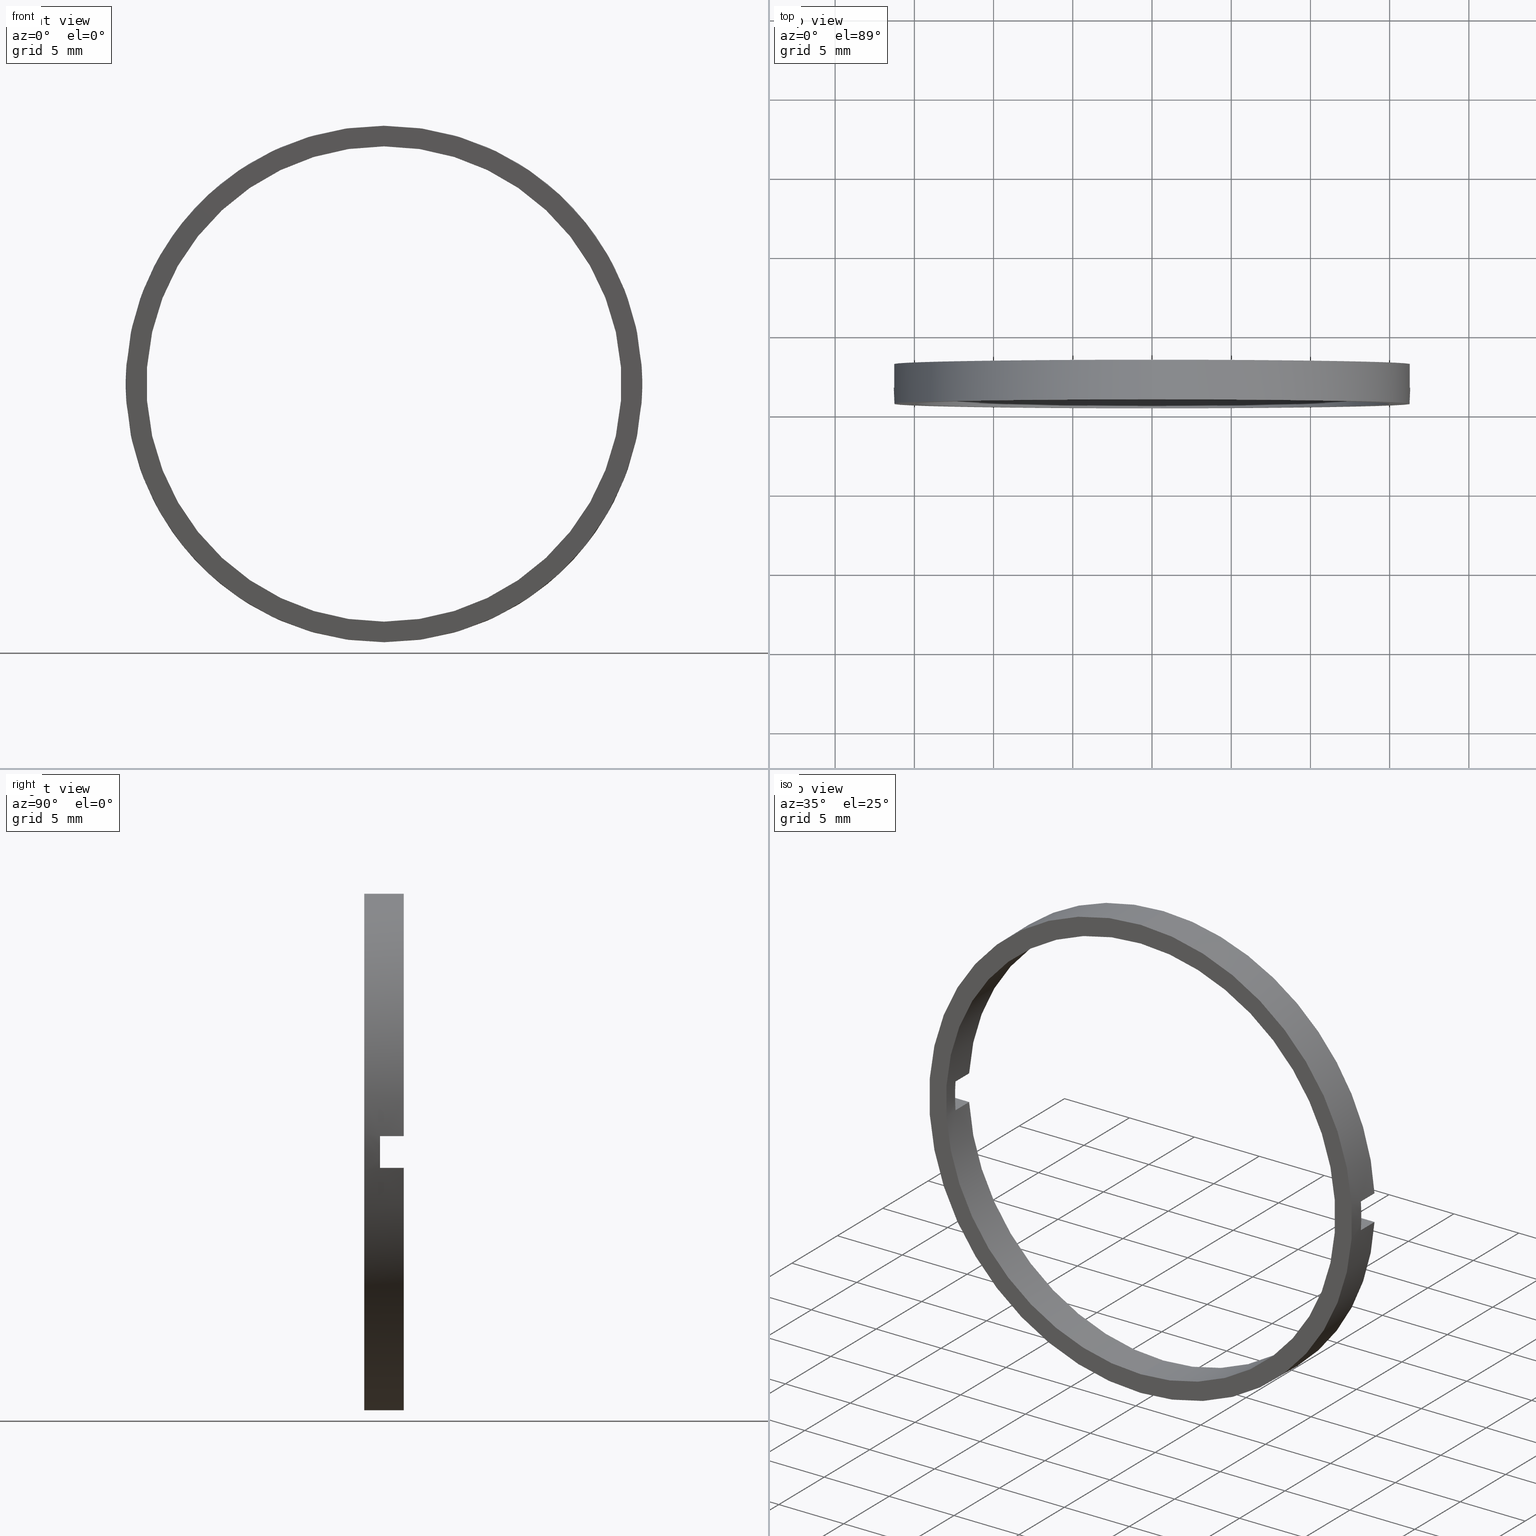
[diagram: canonical four-view strip — front | top / right | iso, engineering-drawing reading convention]
A machine part, canonical four-view strip (front | top / right | iso — engineering-drawing reading convention). The complete STEP part file that produces these views, byte-faithful:
ISO-10303-21;
HEADER;
FILE_DESCRIPTION (( 'STEP AP214' ),
    '1' );
FILE_NAME ('514004.STEP',
    '2019-09-18T02:56:30',
    ( '' ),
    ( '' ),
    'SwSTEP 2.0',
    'SolidWorks 2016',
    '' );
FILE_SCHEMA (( 'AUTOMOTIVE_DESIGN' ));
ENDSEC;

DATA;
#1 = ORIENTED_EDGE ( 'NONE', *, *, #499, .F. ) ;
#2 = AXIS2_PLACEMENT_3D ( 'NONE', #435, #490, #372 ) ;
#3 = CIRCLE ( 'NONE', #36, 15.00000000000000700 ) ;
#4 = ORIENTED_EDGE ( 'NONE', *, *, #80, .T. ) ;
#5 = DIRECTION ( 'NONE',  ( -0.0000000000000000000, 1.000000000000000000, -0.0000000000000000000 ) ) ;
#6 = ADVANCED_FACE ( 'NONE', ( #162 ), #278, .F. ) ;
#7 =( GEOMETRIC_REPRESENTATION_CONTEXT ( 3 ) GLOBAL_UNCERTAINTY_ASSIGNED_CONTEXT ( ( #32 ) ) GLOBAL_UNIT_ASSIGNED_CONTEXT ( ( #259, #108, #145 ) ) REPRESENTATION_CONTEXT ( 'NONE', 'WORKASPACE' ) );
#8 = ADVANCED_FACE ( 'NONE', ( #312 ), #350, .T. ) ;
#9 = DIRECTION ( 'NONE',  ( -1.000000000000000000, -0.0000000000000000000, -0.0000000000000000000 ) ) ;
#10 = CIRCLE ( 'NONE', #217, 15.00000000000000700 ) ;
#11 = ORIENTED_EDGE ( 'NONE', *, *, #231, .F. ) ;
#12 = CARTESIAN_POINT ( 'NONE',  ( 0.0000000000000000000, -1.964249787179434000, 0.0000000000000000000 ) ) ;
#13 = ADVANCED_FACE ( 'NONE', ( #487 ), #216, .F. ) ;
#14 = CIRCLE ( 'NONE', #246, 16.30000000000000800 ) ;
#15 = DIRECTION ( 'NONE',  ( 0.0000000000000000000, -1.000000000000000000, 0.0000000000000000000 ) ) ;
#16 = ORIENTED_EDGE ( 'NONE', *, *, #77, .T. ) ;
#17 = DIRECTION ( 'NONE',  ( -1.000000000000000000, -0.0000000000000000000, -0.0000000000000000000 ) ) ;
#18 = EDGE_CURVE ( 'NONE', #285, #327, #391, .T. ) ;
#19 = EDGE_CURVE ( 'NONE', #285, #100, #385, .T. ) ;
#20 = DIRECTION ( 'NONE',  ( 1.000000000000000000, 0.0000000000000000000, 0.0000000000000000000 ) ) ;
#21 = CARTESIAN_POINT ( 'NONE',  ( 15.00000000000000700, -4.464249787179429800, 0.0000000000000000000 ) ) ;
#22 = DIRECTION ( 'NONE',  ( -0.0000000000000000000, 1.000000000000000000, -0.0000000000000000000 ) ) ;
#23 = LINE ( 'NONE', #123, #301 ) ;
#24 = AXIS2_PLACEMENT_3D ( 'NONE', #21, #437, #253 ) ;
#25 = FACE_OUTER_BOUND ( 'NONE', #274, .T. ) ;
#26 = VERTEX_POINT ( 'NONE', #158 ) ;
#27 = ORIENTED_EDGE ( 'NONE', *, *, #313, .F. ) ;
#28 = ORIENTED_EDGE ( 'NONE', *, *, #399, .T. ) ;
#29 = DIRECTION ( 'NONE',  ( -1.000000000000000000, -0.0000000000000000000, -0.0000000000000000000 ) ) ;
#30 = PRESENTATION_LAYER_ASSIGNMENT (  '', '', ( #402 ) ) ;
#31 = CARTESIAN_POINT ( 'NONE',  ( -16.26929623554750400, -3.464249787179428400, 0.9999999999999995600 ) ) ;
#32 = UNCERTAINTY_MEASURE_WITH_UNIT (LENGTH_MEASURE( 1.000000000000000100E-005 ), #259, 'distance_accuracy_value', 'NONE');
#33 = CIRCLE ( 'NONE', #304, 15.00000000000000700 ) ;
#34 = EDGE_LOOP ( 'NONE', ( #328, #186 ) ) ;
#35 = FACE_OUTER_BOUND ( 'NONE', #49, .T. ) ;
#36 = AXIS2_PLACEMENT_3D ( 'NONE', #264, #449, #64 ) ;
#37 = CARTESIAN_POINT ( 'NONE',  ( -26.85254027261461800, -3.464249787179431100, 1.000000000000000000 ) ) ;
#38 = CARTESIAN_POINT ( 'NONE',  ( -26.85254027261461800, -3.464249787179431100, 1.000000000000000000 ) ) ;
#39 = VERTEX_POINT ( 'NONE', #352 ) ;
#40 = ORIENTED_EDGE ( 'NONE', *, *, #342, .T. ) ;
#41 = CARTESIAN_POINT ( 'NONE',  ( 0.0000000000000000000, -3.464249787179431100, 0.0000000000000000000 ) ) ;
#42 = EDGE_CURVE ( 'NONE', #59, #265, #370, .T. ) ;
#43 = EDGE_CURVE ( 'NONE', #451, #327, #82, .T. ) ;
#44 = LINE ( 'NONE', #58, #283 ) ;
#45 = CARTESIAN_POINT ( 'NONE',  ( 0.0000000000000000000, -3.464249787179431100, 0.0000000000000000000 ) ) ;
#46 = ORIENTED_EDGE ( 'NONE', *, *, #191, .F. ) ;
#47 = DIRECTION ( 'NONE',  ( 1.000000000000000000, 0.0000000000000000000, 0.0000000000000000000 ) ) ;
#48 = ADVANCED_FACE ( 'NONE', ( #341 ), #257, .T. ) ;
#49 = EDGE_LOOP ( 'NONE', ( #495, #339, #501, #382 ) ) ;
#50 = ORIENTED_EDGE ( 'NONE', *, *, #231, .T. ) ;
#51 = AXIS2_PLACEMENT_3D ( 'NONE', #69, #62, #457 ) ;
#52 = CARTESIAN_POINT ( 'NONE',  ( 14.96662954709577100, -3.464249787179428400, 0.9999999999999995600 ) ) ;
#53 = EDGE_CURVE ( 'NONE', #65, #143, #23, .T. ) ;
#54 = AXIS2_PLACEMENT_3D ( 'NONE', #389, #276, #348 ) ;
#55 =( GEOMETRIC_REPRESENTATION_CONTEXT ( 3 ) GLOBAL_UNCERTAINTY_ASSIGNED_CONTEXT ( ( #161 ) ) GLOBAL_UNIT_ASSIGNED_CONTEXT ( ( #244, #360, #404 ) ) REPRESENTATION_CONTEXT ( 'NONE', 'WORKASPACE' ) );
#56 = CIRCLE ( 'NONE', #420, 15.00000000000000700 ) ;
#57 = DIRECTION ( 'NONE',  ( 0.0000000000000000000, -1.000000000000000000, 0.0000000000000000000 ) ) ;
#58 = CARTESIAN_POINT ( 'NONE',  ( -26.85254027261461800, -3.464249787179431100, -1.000000000000000000 ) ) ;
#59 = VERTEX_POINT ( 'NONE', #52 ) ;
#60 = AXIS2_PLACEMENT_3D ( 'NONE', #343, #107, #416 ) ;
#61 = DIRECTION ( 'NONE',  ( 0.0000000000000000000, -0.0000000000000000000, -1.000000000000000000 ) ) ;
#62 = DIRECTION ( 'NONE',  ( -0.0000000000000000000, 1.000000000000000000, -0.0000000000000000000 ) ) ;
#63 = EDGE_LOOP ( 'NONE', ( #434, #74, #466, #472, #16, #445, #237, #452 ) ) ;
#64 = DIRECTION ( 'NONE',  ( 0.0000000000000000000, 0.0000000000000000000, 1.000000000000000000 ) ) ;
#65 = VERTEX_POINT ( 'NONE', #210 ) ;
#66 = SURFACE_STYLE_FILL_AREA ( #185 ) ;
#67 = DIRECTION ( 'NONE',  ( 0.0000000000000000000, 0.0000000000000000000, 1.000000000000000000 ) ) ;
#68 = UNCERTAINTY_MEASURE_WITH_UNIT (LENGTH_MEASURE( 1.000000000000000100E-005 ), #454, 'distance_accuracy_value', 'NONE');
#69 = CARTESIAN_POINT ( 'NONE',  ( 0.0000000000000000000, 56.26084262701361600, 0.0000000000000000000 ) ) ;
#70 =( NAMED_UNIT ( * ) SI_UNIT ( $, .STERADIAN. ) SOLID_ANGLE_UNIT ( ) );
#71 = AXIS2_PLACEMENT_3D ( 'NONE', #78, #154, #284 ) ;
#72 = VECTOR ( 'NONE', #98, 1000.000000000000000 ) ;
#73 = DIRECTION ( 'NONE',  ( 1.000000000000000000, 0.0000000000000000000, 0.0000000000000000000 ) ) ;
#74 = ORIENTED_EDGE ( 'NONE', *, *, #19, .F. ) ;
#75 = ORIENTED_EDGE ( 'NONE', *, *, #286, .T. ) ;
#76 = AXIS2_PLACEMENT_3D ( 'NONE', #336, #102, #141 ) ;
#77 = EDGE_CURVE ( 'NONE', #249, #59, #474, .T. ) ;
#78 = CARTESIAN_POINT ( 'NONE',  ( 0.0000000000000000000, 56.26084262701361600, 0.0000000000000000000 ) ) ;
#79 = LINE ( 'NONE', #225, #387 ) ;
#80 = EDGE_CURVE ( 'NONE', #279, #143, #460, .T. ) ;
#81 = ORIENTED_EDGE ( 'NONE', *, *, #286, .F. ) ;
#82 = CIRCLE ( 'NONE', #239, 15.00000000000000700 ) ;
#83 = UNCERTAINTY_MEASURE_WITH_UNIT (LENGTH_MEASURE( 1.000000000000000100E-005 ), #197, 'distance_accuracy_value', 'NONE');
#84 = ADVANCED_FACE ( 'NONE', ( #137 ), #294, .F. ) ;
#85 = CARTESIAN_POINT ( 'NONE',  ( -26.85254027261461800, -1.964249787179430900, -1.000000000000000000 ) ) ;
#86 = PRESENTATION_LAYER_ASSIGNMENT (  '', '', ( #138 ) ) ;
#87 = PLANE ( 'NONE',  #346 ) ;
#88 = ORIENTED_EDGE ( 'NONE', *, *, #415, .F. ) ;
#89 = FILL_AREA_STYLE ('',( #481 ) ) ;
#90 = ORIENTED_EDGE ( 'NONE', *, *, #439, .T. ) ;
#91 = EDGE_LOOP ( 'NONE', ( #479, #464, #465, #81 ) ) ;
#92 = DIRECTION ( 'NONE',  ( -0.0000000000000000000, 1.000000000000000000, -0.0000000000000000000 ) ) ;
#93 = DIRECTION ( 'NONE',  ( 0.0000000000000000000, 0.0000000000000000000, 1.000000000000000000 ) ) ;
#94 = CARTESIAN_POINT ( 'NONE',  ( -26.85254027261461800, -3.464249787179431100, -1.000000000000000000 ) ) ;
#95 = ORIENTED_EDGE ( 'NONE', *, *, #254, .F. ) ;
#96 = SURFACE_STYLE_FILL_AREA ( #273 ) ;
#97 = CARTESIAN_POINT ( 'NONE',  ( 16.26929623554750400, -3.464249787179428400, -0.9999999999999995600 ) ) ;
#98 = DIRECTION ( 'NONE',  ( 0.0000000000000000000, -1.000000000000000000, 0.0000000000000000000 ) ) ;
#99 = CARTESIAN_POINT ( 'NONE',  ( 0.0000000000000000000, -1.964249787179434000, 0.0000000000000000000 ) ) ;
#100 = VERTEX_POINT ( 'NONE', #430 ) ;
#101 = FILL_AREA_STYLE_COLOUR ( '', #485 ) ;
#102 = DIRECTION ( 'NONE',  ( -0.0000000000000000000, 1.000000000000000000, -0.0000000000000000000 ) ) ;
#103 = VECTOR ( 'NONE', #330, 1000.000000000000000 ) ;
#104 = EDGE_CURVE ( 'NONE', #327, #249, #10, .T. ) ;
#105 = CARTESIAN_POINT ( 'NONE',  ( 0.0000000000000000000, -3.464249787179428400, 0.0000000000000000000 ) ) ;
#106 = PRODUCT_RELATED_PRODUCT_CATEGORY ( 'part', '', ( #315 ) ) ;
#107 = DIRECTION ( 'NONE',  ( 0.0000000000000000000, -1.000000000000000000, 0.0000000000000000000 ) ) ;
#108 =( NAMED_UNIT ( * ) PLANE_ANGLE_UNIT ( ) SI_UNIT ( $, .RADIAN. ) );
#109 = EDGE_LOOP ( 'NONE', ( #199, #203, #436, #117, #351, #482 ) ) ;
#110 = CARTESIAN_POINT ( 'NONE',  ( -26.85254027261461800, -3.464249787179431100, 1.000000000000000000 ) ) ;
#111 = CARTESIAN_POINT ( 'NONE',  ( 0.0000000000000000000, 56.26084262701361600, 16.30000000000000800 ) ) ;
#112 = FACE_OUTER_BOUND ( 'NONE', #413, .T. ) ;
#113 = AXIS2_PLACEMENT_3D ( 'NONE', #309, #493, #61 ) ;
#114 = DIRECTION ( 'NONE',  ( 0.0000000000000000000, 1.000000000000000000, 0.0000000000000000000 ) ) ;
#115 = COLOUR_RGB ( '',1.000000000000000000, 1.000000000000000000, 1.000000000000000000 ) ;
#116 = DIRECTION ( 'NONE',  ( 0.0000000000000000000, 0.0000000000000000000, 1.000000000000000000 ) ) ;
#117 = ORIENTED_EDGE ( 'NONE', *, *, #104, .F. ) ;
#118 = CARTESIAN_POINT ( 'NONE',  ( 0.0000000000000000000, -1.964249787179434000, 0.0000000000000000000 ) ) ;
#119 = ADVANCED_FACE ( 'NONE', ( #35 ), #164, .T. ) ;
#120 = CARTESIAN_POINT ( 'NONE',  ( -26.85254027261461800, -3.464249787179431100, -1.000000000000000000 ) ) ;
#121 = FACE_OUTER_BOUND ( 'NONE', #156, .T. ) ;
#122 = ADVANCED_FACE ( 'NONE', ( #121 ), #166, .F. ) ;
#123 = CARTESIAN_POINT ( 'NONE',  ( -16.26929623554750700, 56.26084262701361600, -1.000000000000000000 ) ) ;
#124 = MECHANICAL_DESIGN_GEOMETRIC_PRESENTATION_REPRESENTATION (  '', ( #138 ), #323 ) ;
#125 = ORIENTED_EDGE ( 'NONE', *, *, #313, .T. ) ;
#126 = ORIENTED_EDGE ( 'NONE', *, *, #442, .T. ) ;
#127 = EDGE_CURVE ( 'NONE', #39, #395, #179, .T. ) ;
#128 = ORIENTED_EDGE ( 'NONE', *, *, #470, .F. ) ;
#129 = CARTESIAN_POINT ( 'NONE',  ( 14.96662954709577100, -1.964249787179434000, 0.9999999999999995600 ) ) ;
#130 = AXIS2_PLACEMENT_3D ( 'NONE', #41, #114, #396 ) ;
#131 = PRODUCT_DEFINITION_CONTEXT ( 'detailed design', #502, 'design' ) ;
#132 = AXIS2_PLACEMENT_3D ( 'NONE', #242, #367, #325 ) ;
#133 = DIRECTION ( 'NONE',  ( -0.0000000000000000000, 1.000000000000000000, -0.0000000000000000000 ) ) ;
#134 = CYLINDRICAL_SURFACE ( 'NONE', #2, 15.00000000000000700 ) ;
#135 = CARTESIAN_POINT ( 'NONE',  ( 0.0000000000000000000, -1.964249787179434000, 0.0000000000000000000 ) ) ;
#136 = EDGE_LOOP ( 'NONE', ( #171, #50, #160, #326, #1, #75, #173, #128 ) ) ;
#137 = FACE_OUTER_BOUND ( 'NONE', #268, .T. ) ;
#138 = STYLED_ITEM ( 'NONE', ( #455 ), #401 ) ;
#139 = CARTESIAN_POINT ( 'NONE',  ( 14.96662954709577100, -1.964249787179434000, -0.9999999999999995600 ) ) ;
#140 = FACE_OUTER_BOUND ( 'NONE', #136, .T. ) ;
#141 = DIRECTION ( 'NONE',  ( 0.0000000000000000000, 0.0000000000000000000, 1.000000000000000000 ) ) ;
#142 = ORIENTED_EDGE ( 'NONE', *, *, #319, .F. ) ;
#143 = VERTEX_POINT ( 'NONE', #324 ) ;
#144 = CARTESIAN_POINT ( 'NONE',  ( -14.96662954709577100, -3.464249787179428400, 0.9999999999999995600 ) ) ;
#145 =( NAMED_UNIT ( * ) SI_UNIT ( $, .STERADIAN. ) SOLID_ANGLE_UNIT ( ) );
#146 = FACE_BOUND ( 'NONE', #34, .T. ) ;
#147 =( NAMED_UNIT ( * ) PLANE_ANGLE_UNIT ( ) SI_UNIT ( $, .RADIAN. ) );
#148 = CARTESIAN_POINT ( 'NONE',  ( -26.85254027261461800, -1.964249787179430900, 1.000000000000000000 ) ) ;
#149 = EDGE_CURVE ( 'NONE', #506, #395, #358, .T. ) ;
#150 = EDGE_LOOP ( 'NONE', ( #397, #424, #364, #468, #250, #256, #172, #155 ) ) ;
#151 = AXIS2_PLACEMENT_3D ( 'NONE', #207, #475, #476 ) ;
#152 =( NAMED_UNIT ( * ) SI_UNIT ( $, .STERADIAN. ) SOLID_ANGLE_UNIT ( ) );
#153 = CIRCLE ( 'NONE', #480, 16.30000000000000800 ) ;
#154 = DIRECTION ( 'NONE',  ( -0.0000000000000000000, 1.000000000000000000, -0.0000000000000000000 ) ) ;
#155 = ORIENTED_EDGE ( 'NONE', *, *, #18, .F. ) ;
#156 = EDGE_LOOP ( 'NONE', ( #90, #236, #27, #363 ) ) ;
#157 = STYLED_ITEM ( 'NONE', ( #356 ), #425 ) ;
#158 = CARTESIAN_POINT ( 'NONE',  ( -14.96662954709577100, -3.464249787179428400, -0.9999999999999995600 ) ) ;
#159 = EDGE_CURVE ( 'NONE', #177, #39, #275, .T. ) ;
#160 = ORIENTED_EDGE ( 'NONE', *, *, #442, .F. ) ;
#161 = UNCERTAINTY_MEASURE_WITH_UNIT (LENGTH_MEASURE( 1.000000000000000100E-005 ), #244, 'distance_accuracy_value', 'NONE');
#162 = FACE_OUTER_BOUND ( 'NONE', #91, .T. ) ;
#163 = LINE ( 'NONE', #489, #497 ) ;
#164 = PLANE ( 'NONE',  #240 ) ;
#165 = ADVANCED_FACE ( 'NONE', ( #112 ), #87, .F. ) ;
#166 = PLANE ( 'NONE',  #151 ) ;
#167 = PRESENTATION_LAYER_ASSIGNMENT (  '', '', ( #380 ) ) ;
#168 = DIRECTION ( 'NONE',  ( 0.0000000000000000000, 0.0000000000000000000, 1.000000000000000000 ) ) ;
#169 = CIRCLE ( 'NONE', #277, 16.30000000000000800 ) ;
#170 = SURFACE_SIDE_STYLE ('',( #282 ) ) ;
#171 = ORIENTED_EDGE ( 'NONE', *, *, #415, .T. ) ;
#172 = ORIENTED_EDGE ( 'NONE', *, *, #43, .T. ) ;
#173 = ORIENTED_EDGE ( 'NONE', *, *, #176, .F. ) ;
#174 = CIRCLE ( 'NONE', #461, 16.30000000000000800 ) ;
#175 = CARTESIAN_POINT ( 'NONE',  ( 1.996174282610186800E-015, -4.464249787179428900, -16.30000000000000800 ) ) ;
#176 = EDGE_CURVE ( 'NONE', #201, #494, #411, .T. ) ;
#177 = VERTEX_POINT ( 'NONE', #97 ) ;
#178 = DIRECTION ( 'NONE',  ( 0.0000000000000000000, 0.0000000000000000000, 1.000000000000000000 ) ) ;
#179 = LINE ( 'NONE', #291, #223 ) ;
#180 = EDGE_CURVE ( 'NONE', #100, #285, #419, .T. ) ;
#181 = CARTESIAN_POINT ( 'NONE',  ( 1.996174282610186800E-015, -1.964249787179434000, -16.30000000000000800 ) ) ;
#182 = CARTESIAN_POINT ( 'NONE',  ( 16.26929623554749300, -1.964249787179430900, 1.000000000000000000 ) ) ;
#183 = LINE ( 'NONE', #148, #248 ) ;
#184 = DIRECTION ( 'NONE',  ( -0.0000000000000000000, -1.000000000000000000, -0.0000000000000000000 ) ) ;
#185 = FILL_AREA_STYLE ('',( #101 ) ) ;
#186 = ORIENTED_EDGE ( 'NONE', *, *, #180, .T. ) ;
#187 = ORIENTED_EDGE ( 'NONE', *, *, #127, .F. ) ;
#188 = EDGE_CURVE ( 'NONE', #251, #280, #428, .T. ) ;
#189 = LINE ( 'NONE', #226, #202 ) ;
#190 = DIRECTION ( 'NONE',  ( -0.0000000000000000000, 1.000000000000000000, -0.0000000000000000000 ) ) ;
#191 = EDGE_CURVE ( 'NONE', #506, #177, #488, .T. ) ;
#192 = CARTESIAN_POINT ( 'NONE',  ( 0.0000000000000000000, -3.464249787179428400, 0.0000000000000000000 ) ) ;
#193 = ORIENTED_EDGE ( 'NONE', *, *, #342, .F. ) ;
#194 =( LENGTH_UNIT ( ) NAMED_UNIT ( * ) SI_UNIT ( .MILLI., .METRE. ) );
#195 = SURFACE_SIDE_STYLE ('',( #96 ) ) ;
#196 = DIRECTION ( 'NONE',  ( 1.000000000000000000, 0.0000000000000000000, 0.0000000000000000000 ) ) ;
#197 =( LENGTH_UNIT ( ) NAMED_UNIT ( * ) SI_UNIT ( .MILLI., .METRE. ) );
#198 = AXIS2_PLACEMENT_3D ( 'NONE', #503, #272, #418 ) ;
#199 = ORIENTED_EDGE ( 'NONE', *, *, #254, .T. ) ;
#200 = PRODUCT_DEFINITION_FORMATION_WITH_SPECIFIED_SOURCE ( '�κ�', '', #315, .NOT_KNOWN. ) ;
#201 = VERTEX_POINT ( 'NONE', #218 ) ;
#202 = VECTOR ( 'NONE', #29, 1000.000000000000000 ) ;
#203 = ORIENTED_EDGE ( 'NONE', *, *, #176, .T. ) ;
#204 = VECTOR ( 'NONE', #47, 1000.000000000000000 ) ;
#205 = EDGE_CURVE ( 'NONE', #249, #494, #398, .T. ) ;
#206 = DIRECTION ( 'NONE',  ( 0.0000000000000000000, 0.0000000000000000000, 1.000000000000000000 ) ) ;
#207 = CARTESIAN_POINT ( 'NONE',  ( -26.85254027261461800, -3.464249787179431100, 1.000000000000000000 ) ) ;
#208 = DIRECTION ( 'NONE',  ( -0.0000000000000000000, 1.000000000000000000, -0.0000000000000000000 ) ) ;
#209 = ADVANCED_FACE ( 'NONE', ( #371 ), #134, .F. ) ;
#210 = CARTESIAN_POINT ( 'NONE',  ( -16.26929623554750400, -3.464249787179428400, -0.9999999999999995600 ) ) ;
#211 = LINE ( 'NONE', #110, #308 ) ;
#212 = CARTESIAN_POINT ( 'NONE',  ( -16.26929623554751100, -1.964249787179430900, 1.000000000000000000 ) ) ;
#213 = CARTESIAN_POINT ( 'NONE',  ( 0.0000000000000000000, -1.964249787179434000, 0.0000000000000000000 ) ) ;
#214 = EDGE_LOOP ( 'NONE', ( #11, #28, #292, #95, #243, #483, #261, #376 ) ) ;
#215 = EDGE_CURVE ( 'NONE', #26, #65, #44, .T. ) ;
#216 = CYLINDRICAL_SURFACE ( 'NONE', #71, 15.00000000000000700 ) ;
#217 = AXIS2_PLACEMENT_3D ( 'NONE', #473, #5, #288 ) ;
#218 = CARTESIAN_POINT ( 'NONE',  ( 0.0000000000000000000, -1.964249787179434000, 16.30000000000000800 ) ) ;
#219 = CARTESIAN_POINT ( 'NONE',  ( -14.96662954709577100, -1.964249787179434000, -0.9999999999999995600 ) ) ;
#220 = PLANE ( 'NONE',  #24 ) ;
#221 =( NAMED_UNIT ( * ) PLANE_ANGLE_UNIT ( ) SI_UNIT ( $, .RADIAN. ) );
#222 = DIRECTION ( 'NONE',  ( 0.0000000000000000000, 0.0000000000000000000, 1.000000000000000000 ) ) ;
#223 = VECTOR ( 'NONE', #290, 1000.000000000000000 ) ;
#224 = MECHANICAL_DESIGN_GEOMETRIC_PRESENTATION_REPRESENTATION (  '', ( #380 ), #450 ) ;
#225 = CARTESIAN_POINT ( 'NONE',  ( -14.96662954709577200, 56.26084262701361600, 1.000000000000000000 ) ) ;
#226 = CARTESIAN_POINT ( 'NONE',  ( -26.85254027261461800, -1.964249787179430900, -1.000000000000000000 ) ) ;
#227 = ORIENTED_EDGE ( 'NONE', *, *, #53, .F. ) ;
#228 = VERTEX_POINT ( 'NONE', #212 ) ;
#229 = DIRECTION ( 'NONE',  ( 0.0000000000000000000, 0.0000000000000000000, 1.000000000000000000 ) ) ;
#230 = APPLICATION_CONTEXT ( 'automotive_design' ) ;
#231 = EDGE_CURVE ( 'NONE', #303, #279, #469, .T. ) ;
#232 = FILL_AREA_STYLE ('',( #498 ) ) ;
#233 = CARTESIAN_POINT ( 'NONE',  ( 16.26929623554749300, -1.964249787179430900, -1.000000000000000000 ) ) ;
#234 = VECTOR ( 'NONE', #9, 1000.000000000000000 ) ;
#235 = EDGE_LOOP ( 'NONE', ( #306, #125, #383, #422 ) ) ;
#236 = ORIENTED_EDGE ( 'NONE', *, *, #369, .F. ) ;
#237 = ORIENTED_EDGE ( 'NONE', *, *, #127, .T. ) ;
#238 = PRODUCT_DEFINITION ( 'δ֪', '', #200, #131 ) ;
#239 = AXIS2_PLACEMENT_3D ( 'NONE', #118, #208, #322 ) ;
#240 = AXIS2_PLACEMENT_3D ( 'NONE', #45, #357, #432 ) ;
#241 = LINE ( 'NONE', #340, #414 ) ;
#242 = CARTESIAN_POINT ( 'NONE',  ( -26.85254027261461800, -3.464249787179431100, -1.000000000000000000 ) ) ;
#243 = ORIENTED_EDGE ( 'NONE', *, *, #266, .T. ) ;
#244 =( LENGTH_UNIT ( ) NAMED_UNIT ( * ) SI_UNIT ( .MILLI., .METRE. ) );
#245 = DIRECTION ( 'NONE',  ( -0.0000000000000000000, 1.000000000000000000, -0.0000000000000000000 ) ) ;
#246 = AXIS2_PLACEMENT_3D ( 'NONE', #213, #333, #329 ) ;
#247 = CARTESIAN_POINT ( 'NONE',  ( 0.0000000000000000000, 56.26084262701361600, 0.0000000000000000000 ) ) ;
#248 = VECTOR ( 'NONE', #196, 1000.000000000000000 ) ;
#249 = VERTEX_POINT ( 'NONE', #129 ) ;
#250 = ORIENTED_EDGE ( 'NONE', *, *, #392, .F. ) ;
#251 = VERTEX_POINT ( 'NONE', #444 ) ;
#252 = DIRECTION ( 'NONE',  ( 0.0000000000000000000, 0.0000000000000000000, 1.000000000000000000 ) ) ;
#253 = DIRECTION ( 'NONE',  ( 0.0000000000000000000, 0.0000000000000000000, 1.000000000000000000 ) ) ;
#254 = EDGE_CURVE ( 'NONE', #228, #201, #14, .T. ) ;
#255 = CARTESIAN_POINT ( 'NONE',  ( 16.26929623554750400, -3.464249787179428400, 0.9999999999999995600 ) ) ;
#256 = ORIENTED_EDGE ( 'NONE', *, *, #369, .T. ) ;
#257 = CYLINDRICAL_SURFACE ( 'NONE', #321, 16.30000000000000800 ) ;
#258 = DIRECTION ( 'NONE',  ( 0.0000000000000000000, 0.0000000000000000000, -1.000000000000000000 ) ) ;
#259 =( LENGTH_UNIT ( ) NAMED_UNIT ( * ) SI_UNIT ( .MILLI., .METRE. ) );
#260 = SURFACE_STYLE_USAGE ( .BOTH. , #384 ) ;
#261 = ORIENTED_EDGE ( 'NONE', *, *, #53, .T. ) ;
#262 = EDGE_LOOP ( 'NONE', ( #88, #263 ) ) ;
#263 = ORIENTED_EDGE ( 'NONE', *, *, #399, .F. ) ;
#264 = CARTESIAN_POINT ( 'NONE',  ( 0.0000000000000000000, -1.964249787179434000, 0.0000000000000000000 ) ) ;
#265 = VERTEX_POINT ( 'NONE', #255 ) ;
#266 = EDGE_CURVE ( 'NONE', #228, #405, #318, .T. ) ;
#267 = PLANE ( 'NONE',  #60 ) ;
#268 = EDGE_LOOP ( 'NONE', ( #347, #366, #40, #227 ) ) ;
#269 = VECTOR ( 'NONE', #15, 1000.000000000000000 ) ;
#270 = DIRECTION ( 'NONE',  ( -0.0000000000000000000, 1.000000000000000000, -0.0000000000000000000 ) ) ;
#271 = AXIS2_PLACEMENT_3D ( 'NONE', #375, #22, #178 ) ;
#272 = DIRECTION ( 'NONE',  ( 0.0000000000000000000, 1.000000000000000000, 0.0000000000000000000 ) ) ;
#273 = FILL_AREA_STYLE ('',( #417 ) ) ;
#274 = EDGE_LOOP ( 'NONE', ( #126, #4, #193, #311, #142, #355 ) ) ;
#275 = LINE ( 'NONE', #120, #234 ) ;
#276 = DIRECTION ( 'NONE',  ( 0.0000000000000000000, 0.0000000000000000000, 1.000000000000000000 ) ) ;
#277 = AXIS2_PLACEMENT_3D ( 'NONE', #192, #456, #67 ) ;
#278 = PLANE ( 'NONE',  #408 ) ;
#279 = VERTEX_POINT ( 'NONE', #181 ) ;
#280 = VERTEX_POINT ( 'NONE', #219 ) ;
#281 = DIRECTION ( 'NONE',  ( -0.0000000000000000000, 0.0000000000000000000, 1.000000000000000000 ) ) ;
#282 = SURFACE_STYLE_FILL_AREA ( #89 ) ;
#283 = VECTOR ( 'NONE', #17, 1000.000000000000000 ) ;
#284 = DIRECTION ( 'NONE',  ( 0.0000000000000000000, 0.0000000000000000000, 1.000000000000000000 ) ) ;
#285 = VERTEX_POINT ( 'NONE', #441 ) ;
#286 = EDGE_CURVE ( 'NONE', #265, #494, #163, .T. ) ;
#287 = VECTOR ( 'NONE', #421, 1000.000000000000000 ) ;
#288 = DIRECTION ( 'NONE',  ( 0.0000000000000000000, 0.0000000000000000000, 1.000000000000000000 ) ) ;
#289 = ADVANCED_FACE ( 'NONE', ( #295, #146 ), #220, .F. ) ;
#290 = DIRECTION ( 'NONE',  ( -0.0000000000000000000, 1.000000000000000000, -0.0000000000000000000 ) ) ;
#291 = CARTESIAN_POINT ( 'NONE',  ( 14.96662954709577200, 56.26084262701361600, -1.000000000000000000 ) ) ;
#292 = ORIENTED_EDGE ( 'NONE', *, *, #470, .T. ) ;
#293 = CLOSED_SHELL ( 'NONE', ( #13, #431, #362, #48, #427, #209, #289, #119, #165, #6, #122, #84, #8 ) ) ;
#294 = PLANE ( 'NONE',  #132 ) ;
#295 = FACE_OUTER_BOUND ( 'NONE', #262, .T. ) ;
#296 = PRODUCT_DEFINITION_SHAPE ( 'NONE', 'NONE',  #238 ) ;
#297 = MECHANICAL_DESIGN_GEOMETRIC_PRESENTATION_REPRESENTATION (  '', ( #402 ), #55 ) ;
#298 = ORIENTED_EDGE ( 'NONE', *, *, #159, .F. ) ;
#299 = COLOUR_RGB ( '',1.000000000000000000, 1.000000000000000000, 1.000000000000000000 ) ;
#300 = DIRECTION ( 'NONE',  ( -0.0000000000000000000, 1.000000000000000000, -0.0000000000000000000 ) ) ;
#301 = VECTOR ( 'NONE', #406, 1000.000000000000000 ) ;
#302 = DIRECTION ( 'NONE',  ( 1.509903313490212900E-014, 0.0000000000000000000, 1.000000000000000000 ) ) ;
#303 = VERTEX_POINT ( 'NONE', #175 ) ;
#304 = AXIS2_PLACEMENT_3D ( 'NONE', #412, #184, #229 ) ;
#305 = CARTESIAN_POINT ( 'NONE',  ( 0.0000000000000000000, -4.464249787179428900, 16.30000000000000800 ) ) ;
#306 = ORIENTED_EDGE ( 'NONE', *, *, #438, .T. ) ;
#307 =( NAMED_UNIT ( * ) PLANE_ANGLE_UNIT ( ) SI_UNIT ( $, .RADIAN. ) );
#308 = VECTOR ( 'NONE', #453, 1000.000000000000000 ) ;
#309 = CARTESIAN_POINT ( 'NONE',  ( 15.00000000000000700, -1.964249787179430900, 0.0000000000000000000 ) ) ;
#310 = DIRECTION ( 'NONE',  ( 0.0000000000000000000, 0.0000000000000000000, 1.000000000000000000 ) ) ;
#311 = ORIENTED_EDGE ( 'NONE', *, *, #188, .F. ) ;
#312 = FACE_OUTER_BOUND ( 'NONE', #235, .T. ) ;
#313 = EDGE_CURVE ( 'NONE', #405, #338, #211, .T. ) ;
#314 = SURFACE_STYLE_USAGE ( .BOTH. , #388 ) ;
#315 = PRODUCT ( '514004', '514004', '', ( #504 ) ) ;
#316 = DIRECTION ( 'NONE',  ( -0.0000000000000000000, 1.000000000000000000, -0.0000000000000000000 ) ) ;
#317 = CARTESIAN_POINT ( 'NONE',  ( 0.0000000000000000000, 56.26084262701361600, 15.00000000000000700 ) ) ;
#318 = LINE ( 'NONE', #484, #269 ) ;
#319 = EDGE_CURVE ( 'NONE', #395, #251, #3, .T. ) ;
#320 = EDGE_CURVE ( 'NONE', #280, #26, #407, .T. ) ;
#321 = AXIS2_PLACEMENT_3D ( 'NONE', #247, #245, #168 ) ;
#322 = DIRECTION ( 'NONE',  ( 0.0000000000000000000, 0.0000000000000000000, 1.000000000000000000 ) ) ;
#323 =( GEOMETRIC_REPRESENTATION_CONTEXT ( 3 ) GLOBAL_UNCERTAINTY_ASSIGNED_CONTEXT ( ( #68 ) ) GLOBAL_UNIT_ASSIGNED_CONTEXT ( ( #454, #307, #500 ) ) REPRESENTATION_CONTEXT ( 'NONE', 'WORKASPACE' ) );
#324 = CARTESIAN_POINT ( 'NONE',  ( -16.26929623554751100, -1.964249787179430900, -1.000000000000000000 ) ) ;
#325 = DIRECTION ( 'NONE',  ( -1.000000000000000000, 0.0000000000000000000, -0.0000000000000000000 ) ) ;
#326 = ORIENTED_EDGE ( 'NONE', *, *, #191, .T. ) ;
#327 = VERTEX_POINT ( 'NONE', #379 ) ;
#328 = ORIENTED_EDGE ( 'NONE', *, *, #19, .T. ) ;
#329 = DIRECTION ( 'NONE',  ( 0.0000000000000000000, 0.0000000000000000000, 1.000000000000000000 ) ) ;
#330 = DIRECTION ( 'NONE',  ( -0.0000000000000000000, 1.000000000000000000, -0.0000000000000000000 ) ) ;
#331 = EDGE_CURVE ( 'NONE', #39, #59, #56, .T. ) ;
#332 = CARTESIAN_POINT ( 'NONE',  ( 16.26929623554750700, 56.26084262701361600, -1.000000000000000000 ) ) ;
#333 = DIRECTION ( 'NONE',  ( -0.0000000000000000000, 1.000000000000000000, -0.0000000000000000000 ) ) ;
#334 = VECTOR ( 'NONE', #426, 1000.000000000000000 ) ;
#335 = CARTESIAN_POINT ( 'NONE',  ( 0.0000000000000000000, -4.464249787179428900, 0.0000000000000000000 ) ) ;
#336 = CARTESIAN_POINT ( 'NONE',  ( 0.0000000000000000000, -4.464249787179428900, 0.0000000000000000000 ) ) ;
#337 = PRESENTATION_STYLE_ASSIGNMENT (( #314 ) ) ;
#338 = VERTEX_POINT ( 'NONE', #144 ) ;
#339 = ORIENTED_EDGE ( 'NONE', *, *, #159, .T. ) ;
#340 = CARTESIAN_POINT ( 'NONE',  ( 1.836970198721030800E-015, 56.26084262701361600, -15.00000000000000700 ) ) ;
#341 = FACE_OUTER_BOUND ( 'NONE', #214, .T. ) ;
#342 = EDGE_CURVE ( 'NONE', #280, #143, #189, .T. ) ;
#343 = CARTESIAN_POINT ( 'NONE',  ( 15.00000000000000700, -1.964249787179430900, 0.0000000000000000000 ) ) ;
#344 = DIRECTION ( 'NONE',  ( -0.0000000000000000000, -1.000000000000000000, -0.0000000000000000000 ) ) ;
#345 = VECTOR ( 'NONE', #57, 1000.000000000000000 ) ;
#346 = AXIS2_PLACEMENT_3D ( 'NONE', #94, #258, #377 ) ;
#347 = ORIENTED_EDGE ( 'NONE', *, *, #215, .F. ) ;
#348 = DIRECTION ( 'NONE',  ( 1.000000000000000000, 0.0000000000000000000, 0.0000000000000000000 ) ) ;
#349 =( GEOMETRIC_REPRESENTATION_CONTEXT ( 3 ) GLOBAL_UNCERTAINTY_ASSIGNED_CONTEXT ( ( #83 ) ) GLOBAL_UNIT_ASSIGNED_CONTEXT ( ( #197, #221, #152 ) ) REPRESENTATION_CONTEXT ( 'NONE', 'WORKASPACE' ) );
#350 = PLANE ( 'NONE',  #130 ) ;
#351 = ORIENTED_EDGE ( 'NONE', *, *, #43, .F. ) ;
#352 = CARTESIAN_POINT ( 'NONE',  ( 14.96662954709577100, -3.464249787179428400, -0.9999999999999995600 ) ) ;
#353 = DIRECTION ( 'NONE',  ( -0.0000000000000000000, 1.000000000000000000, -0.0000000000000000000 ) ) ;
#354 = FACE_OUTER_BOUND ( 'NONE', #109, .T. ) ;
#355 = ORIENTED_EDGE ( 'NONE', *, *, #149, .F. ) ;
#356 = PRESENTATION_STYLE_ASSIGNMENT (( #462 ) ) ;
#357 = DIRECTION ( 'NONE',  ( 0.0000000000000000000, 1.000000000000000000, 0.0000000000000000000 ) ) ;
#358 = LINE ( 'NONE', #85, #447 ) ;
#359 = DIRECTION ( 'NONE',  ( -1.000000000000000000, -0.0000000000000000000, -0.0000000000000000000 ) ) ;
#360 =( NAMED_UNIT ( * ) PLANE_ANGLE_UNIT ( ) SI_UNIT ( $, .RADIAN. ) );
#361 = CIRCLE ( 'NONE', #198, 16.30000000000000800 ) ;
#362 = ADVANCED_FACE ( 'NONE', ( #354 ), #381, .F. ) ;
#363 = ORIENTED_EDGE ( 'NONE', *, *, #266, .F. ) ;
#364 = ORIENTED_EDGE ( 'NONE', *, *, #188, .T. ) ;
#365 = SURFACE_STYLE_USAGE ( .BOTH. , #170 ) ;
#366 = ORIENTED_EDGE ( 'NONE', *, *, #320, .F. ) ;
#367 = DIRECTION ( 'NONE',  ( 0.0000000000000000000, 0.0000000000000000000, -1.000000000000000000 ) ) ;
#368 = ORIENTED_EDGE ( 'NONE', *, *, #149, .T. ) ;
#369 = EDGE_CURVE ( 'NONE', #338, #451, #79, .T. ) ;
#370 = LINE ( 'NONE', #38, #204 ) ;
#371 = FACE_OUTER_BOUND ( 'NONE', #63, .T. ) ;
#372 = DIRECTION ( 'NONE',  ( 0.0000000000000000000, 0.0000000000000000000, 1.000000000000000000 ) ) ;
#373 = AXIS2_PLACEMENT_3D ( 'NONE', #12, #92, #206 ) ;
#374 = PRESENTATION_STYLE_ASSIGNMENT (( #365 ) ) ;
#375 = CARTESIAN_POINT ( 'NONE',  ( 0.0000000000000000000, -4.464249787179428900, 0.0000000000000000000 ) ) ;
#376 = ORIENTED_EDGE ( 'NONE', *, *, #80, .F. ) ;
#377 = DIRECTION ( 'NONE',  ( -1.000000000000000000, 0.0000000000000000000, -0.0000000000000000000 ) ) ;
#378 = DIRECTION ( 'NONE',  ( -0.0000000000000000000, 1.000000000000000000, -0.0000000000000000000 ) ) ;
#379 = CARTESIAN_POINT ( 'NONE',  ( 0.0000000000000000000, -1.964249787179434000, 15.00000000000000700 ) ) ;
#380 = STYLED_ITEM ( 'NONE', ( #337 ), #431 ) ;
#381 = PLANE ( 'NONE',  #113 ) ;
#382 = ORIENTED_EDGE ( 'NONE', *, *, #42, .T. ) ;
#383 = ORIENTED_EDGE ( 'NONE', *, *, #392, .T. ) ;
#384 = SURFACE_SIDE_STYLE ('',( #66 ) ) ;
#385 = CIRCLE ( 'NONE', #471, 15.00000000000000700 ) ;
#386 = AXIS2_PLACEMENT_3D ( 'NONE', #99, #300, #252 ) ;
#387 = VECTOR ( 'NONE', #496, 1000.000000000000000 ) ;
#388 = SURFACE_SIDE_STYLE ('',( #478 ) ) ;
#389 = CARTESIAN_POINT ( 'NONE',  ( 0.0000000000000000000, 0.0000000000000000000, 0.0000000000000000000 ) ) ;
#390 = COLOUR_RGB ( '',1.000000000000000000, 1.000000000000000000, 1.000000000000000000 ) ;
#391 = LINE ( 'NONE', #317, #287 ) ;
#392 = EDGE_CURVE ( 'NONE', #338, #26, #33, .T. ) ;
#393 = DIRECTION ( 'NONE',  ( -0.0000000000000000000, 1.000000000000000000, -0.0000000000000000000 ) ) ;
#394 = VECTOR ( 'NONE', #316, 1000.000000000000000 ) ;
#395 = VERTEX_POINT ( 'NONE', #139 ) ;
#396 = DIRECTION ( 'NONE',  ( 0.0000000000000000000, -0.0000000000000000000, 1.000000000000000000 ) ) ;
#397 = ORIENTED_EDGE ( 'NONE', *, *, #180, .F. ) ;
#398 = LINE ( 'NONE', #409, #440 ) ;
#399 = EDGE_CURVE ( 'NONE', #303, #423, #174, .T. ) ;
#400 = EDGE_CURVE ( 'NONE', #100, #251, #241, .T. ) ;
#401 = MANIFOLD_SOLID_BREP ( '�г�-����1', #293 ) ;
#402 = STYLED_ITEM ( 'NONE', ( #374 ), #48 ) ;
#403 = CIRCLE ( 'NONE', #76, 16.30000000000000800 ) ;
#404 =( NAMED_UNIT ( * ) SI_UNIT ( $, .STERADIAN. ) SOLID_ANGLE_UNIT ( ) );
#405 = VERTEX_POINT ( 'NONE', #31 ) ;
#406 = DIRECTION ( 'NONE',  ( -0.0000000000000000000, 1.000000000000000000, -0.0000000000000000000 ) ) ;
#407 = LINE ( 'NONE', #446, #345 ) ;
#408 = AXIS2_PLACEMENT_3D ( 'NONE', #37, #281, #73 ) ;
#409 = CARTESIAN_POINT ( 'NONE',  ( -26.85254027261461800, -1.964249787179430900, 1.000000000000000000 ) ) ;
#410 = PRESENTATION_LAYER_ASSIGNMENT (  '', '', ( #157 ) ) ;
#411 = CIRCLE ( 'NONE', #386, 16.30000000000000800 ) ;
#412 = CARTESIAN_POINT ( 'NONE',  ( 0.0000000000000000000, -3.464249787179428400, 0.0000000000000000000 ) ) ;
#413 = EDGE_LOOP ( 'NONE', ( #368, #187, #298, #46 ) ) ;
#414 = VECTOR ( 'NONE', #270, 1000.000000000000000 ) ;
#415 = EDGE_CURVE ( 'NONE', #423, #303, #403, .T. ) ;
#416 = DIRECTION ( 'NONE',  ( 0.0000000000000000000, -0.0000000000000000000, -1.000000000000000000 ) ) ;
#417 = FILL_AREA_STYLE_COLOUR ( '', #299 ) ;
#418 = DIRECTION ( 'NONE',  ( 0.0000000000000000000, 0.0000000000000000000, 1.000000000000000000 ) ) ;
#419 = CIRCLE ( 'NONE', #271, 15.00000000000000700 ) ;
#420 = AXIS2_PLACEMENT_3D ( 'NONE', #105, #344, #302 ) ;
#421 = DIRECTION ( 'NONE',  ( -0.0000000000000000000, 1.000000000000000000, -0.0000000000000000000 ) ) ;
#422 = ORIENTED_EDGE ( 'NONE', *, *, #215, .T. ) ;
#423 = VERTEX_POINT ( 'NONE', #305 ) ;
#424 = ORIENTED_EDGE ( 'NONE', *, *, #400, .T. ) ;
#425 = ADVANCED_BREP_SHAPE_REPRESENTATION ( '514004', ( #401, #54 ), #349 ) ;
#426 = DIRECTION ( 'NONE',  ( 0.0000000000000000000, -1.000000000000000000, 0.0000000000000000000 ) ) ;
#427 = ADVANCED_FACE ( 'NONE', ( #25 ), #267, .F. ) ;
#428 = CIRCLE ( 'NONE', #443, 15.00000000000000700 ) ;
#429 = MECHANICAL_DESIGN_GEOMETRIC_PRESENTATION_REPRESENTATION (  '', ( #157 ), #7 ) ;
#430 = CARTESIAN_POINT ( 'NONE',  ( 1.836970198721030800E-015, -4.464249787179428900, -15.00000000000000700 ) ) ;
#431 = ADVANCED_FACE ( 'NONE', ( #140 ), #463, .T. ) ;
#432 = DIRECTION ( 'NONE',  ( 0.0000000000000000000, -0.0000000000000000000, 1.000000000000000000 ) ) ;
#433 = CARTESIAN_POINT ( 'NONE',  ( 14.96662954709577200, 56.26084262701361600, 1.000000000000000000 ) ) ;
#434 = ORIENTED_EDGE ( 'NONE', *, *, #400, .F. ) ;
#435 = CARTESIAN_POINT ( 'NONE',  ( 0.0000000000000000000, 56.26084262701361600, 0.0000000000000000000 ) ) ;
#436 = ORIENTED_EDGE ( 'NONE', *, *, #205, .F. ) ;
#437 = DIRECTION ( 'NONE',  ( -0.0000000000000000000, 1.000000000000000000, 0.0000000000000000000 ) ) ;
#438 = EDGE_CURVE ( 'NONE', #65, #405, #361, .T. ) ;
#439 = EDGE_CURVE ( 'NONE', #228, #451, #183, .T. ) ;
#440 = VECTOR ( 'NONE', #20, 1000.000000000000000 ) ;
#441 = CARTESIAN_POINT ( 'NONE',  ( 0.0000000000000000000, -4.464249787179428900, 15.00000000000000700 ) ) ;
#442 = EDGE_CURVE ( 'NONE', #506, #279, #153, .T. ) ;
#443 = AXIS2_PLACEMENT_3D ( 'NONE', #135, #378, #93 ) ;
#444 = CARTESIAN_POINT ( 'NONE',  ( 1.836970198721030800E-015, -1.964249787179434000, -15.00000000000000700 ) ) ;
#445 = ORIENTED_EDGE ( 'NONE', *, *, #331, .F. ) ;
#446 = CARTESIAN_POINT ( 'NONE',  ( -14.96662954709577200, 56.26084262701361600, -1.000000000000000000 ) ) ;
#447 = VECTOR ( 'NONE', #359, 1000.000000000000000 ) ;
#448 = CARTESIAN_POINT ( 'NONE',  ( 0.0000000000000000000, -1.964249787179434000, 0.0000000000000000000 ) ) ;
#449 = DIRECTION ( 'NONE',  ( -0.0000000000000000000, 1.000000000000000000, -0.0000000000000000000 ) ) ;
#450 =( GEOMETRIC_REPRESENTATION_CONTEXT ( 3 ) GLOBAL_UNCERTAINTY_ASSIGNED_CONTEXT ( ( #477 ) ) GLOBAL_UNIT_ASSIGNED_CONTEXT ( ( #194, #147, #70 ) ) REPRESENTATION_CONTEXT ( 'NONE', 'WORKASPACE' ) );
#451 = VERTEX_POINT ( 'NONE', #458 ) ;
#452 = ORIENTED_EDGE ( 'NONE', *, *, #319, .T. ) ;
#453 = DIRECTION ( 'NONE',  ( 1.000000000000000000, 0.0000000000000000000, 0.0000000000000000000 ) ) ;
#454 =( LENGTH_UNIT ( ) NAMED_UNIT ( * ) SI_UNIT ( .MILLI., .METRE. ) );
#455 = PRESENTATION_STYLE_ASSIGNMENT (( #260 ) ) ;
#456 = DIRECTION ( 'NONE',  ( 0.0000000000000000000, 1.000000000000000000, 0.0000000000000000000 ) ) ;
#457 = DIRECTION ( 'NONE',  ( 0.0000000000000000000, 0.0000000000000000000, 1.000000000000000000 ) ) ;
#458 = CARTESIAN_POINT ( 'NONE',  ( -14.96662954709577100, -1.964249787179434000, 0.9999999999999995600 ) ) ;
#459 = SHAPE_DEFINITION_REPRESENTATION ( #296, #425 ) ;
#460 = CIRCLE ( 'NONE', #373, 16.30000000000000800 ) ;
#461 = AXIS2_PLACEMENT_3D ( 'NONE', #335, #190, #222 ) ;
#462 = SURFACE_STYLE_USAGE ( .BOTH. , #195 ) ;
#463 = CYLINDRICAL_SURFACE ( 'NONE', #51, 16.30000000000000800 ) ;
#464 = ORIENTED_EDGE ( 'NONE', *, *, #77, .F. ) ;
#465 = ORIENTED_EDGE ( 'NONE', *, *, #205, .T. ) ;
#466 = ORIENTED_EDGE ( 'NONE', *, *, #18, .T. ) ;
#467 = CARTESIAN_POINT ( 'NONE',  ( 0.0000000000000000000, -4.464249787179428900, 0.0000000000000000000 ) ) ;
#468 = ORIENTED_EDGE ( 'NONE', *, *, #320, .T. ) ;
#469 = LINE ( 'NONE', #486, #103 ) ;
#470 = EDGE_CURVE ( 'NONE', #423, #201, #492, .T. ) ;
#471 = AXIS2_PLACEMENT_3D ( 'NONE', #467, #353, #116 ) ;
#472 = ORIENTED_EDGE ( 'NONE', *, *, #104, .T. ) ;
#473 = CARTESIAN_POINT ( 'NONE',  ( 0.0000000000000000000, -1.964249787179434000, 0.0000000000000000000 ) ) ;
#474 = LINE ( 'NONE', #433, #334 ) ;
#475 = DIRECTION ( 'NONE',  ( -0.0000000000000000000, 0.0000000000000000000, 1.000000000000000000 ) ) ;
#476 = DIRECTION ( 'NONE',  ( 1.000000000000000000, 0.0000000000000000000, 0.0000000000000000000 ) ) ;
#477 = UNCERTAINTY_MEASURE_WITH_UNIT (LENGTH_MEASURE( 1.000000000000000100E-005 ), #194, 'distance_accuracy_value', 'NONE');
#478 = SURFACE_STYLE_FILL_AREA ( #232 ) ;
#479 = ORIENTED_EDGE ( 'NONE', *, *, #42, .F. ) ;
#480 = AXIS2_PLACEMENT_3D ( 'NONE', #448, #393, #310 ) ;
#481 = FILL_AREA_STYLE_COLOUR ( '', #390 ) ;
#482 = ORIENTED_EDGE ( 'NONE', *, *, #439, .F. ) ;
#483 = ORIENTED_EDGE ( 'NONE', *, *, #438, .F. ) ;
#484 = CARTESIAN_POINT ( 'NONE',  ( -16.26929623554750700, 56.26084262701361600, 1.000000000000000000 ) ) ;
#485 = COLOUR_RGB ( '',1.000000000000000000, 1.000000000000000000, 1.000000000000000000 ) ;
#486 = CARTESIAN_POINT ( 'NONE',  ( 1.996174282610186800E-015, 56.26084262701361600, -16.30000000000000800 ) ) ;
#487 = FACE_OUTER_BOUND ( 'NONE', #150, .T. ) ;
#488 = LINE ( 'NONE', #332, #72 ) ;
#489 = CARTESIAN_POINT ( 'NONE',  ( 16.26929623554750700, 56.26084262701361600, 1.000000000000000000 ) ) ;
#490 = DIRECTION ( 'NONE',  ( -0.0000000000000000000, 1.000000000000000000, -0.0000000000000000000 ) ) ;
#491 = APPLICATION_PROTOCOL_DEFINITION ( 'draft international standard', 'automotive_design', 1998, #230 ) ;
#492 = LINE ( 'NONE', #111, #394 ) ;
#493 = DIRECTION ( 'NONE',  ( 0.0000000000000000000, -1.000000000000000000, 0.0000000000000000000 ) ) ;
#494 = VERTEX_POINT ( 'NONE', #182 ) ;
#495 = ORIENTED_EDGE ( 'NONE', *, *, #499, .T. ) ;
#496 = DIRECTION ( 'NONE',  ( -0.0000000000000000000, 1.000000000000000000, -0.0000000000000000000 ) ) ;
#497 = VECTOR ( 'NONE', #133, 1000.000000000000000 ) ;
#498 = FILL_AREA_STYLE_COLOUR ( '', #115 ) ;
#499 = EDGE_CURVE ( 'NONE', #265, #177, #169, .T. ) ;
#500 =( NAMED_UNIT ( * ) SI_UNIT ( $, .STERADIAN. ) SOLID_ANGLE_UNIT ( ) );
#501 = ORIENTED_EDGE ( 'NONE', *, *, #331, .T. ) ;
#502 = APPLICATION_CONTEXT ( 'automotive_design' ) ;
#503 = CARTESIAN_POINT ( 'NONE',  ( 0.0000000000000000000, -3.464249787179428400, 0.0000000000000000000 ) ) ;
#504 = PRODUCT_CONTEXT ( 'NONE', #230, 'mechanical' ) ;
#505 = APPLICATION_PROTOCOL_DEFINITION ( 'draft international standard', 'automotive_design', 1998, #502 ) ;
#506 = VERTEX_POINT ( 'NONE', #233 ) ;
ENDSEC;
END-ISO-10303-21;
